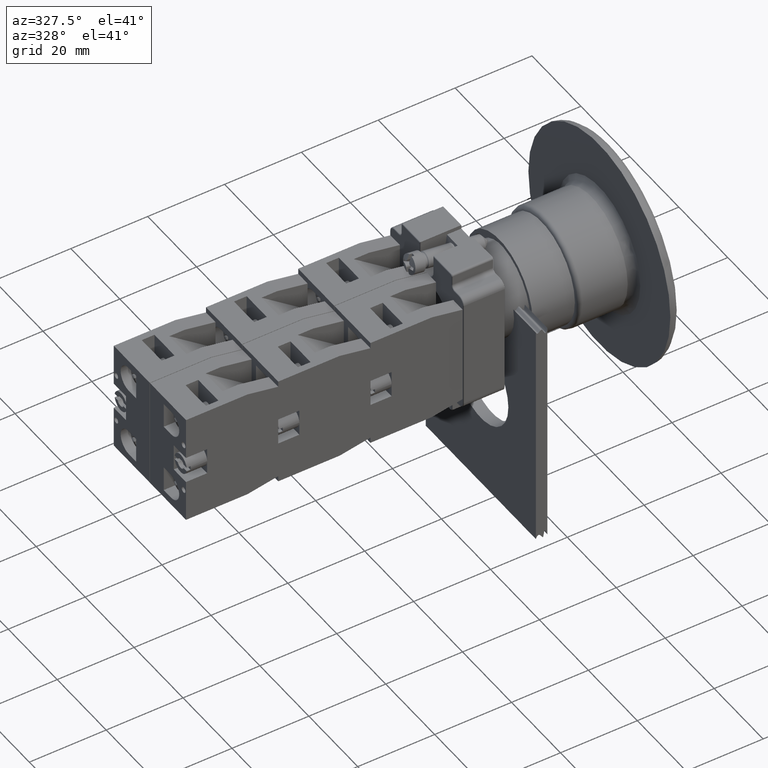
[diagram: clean part render]
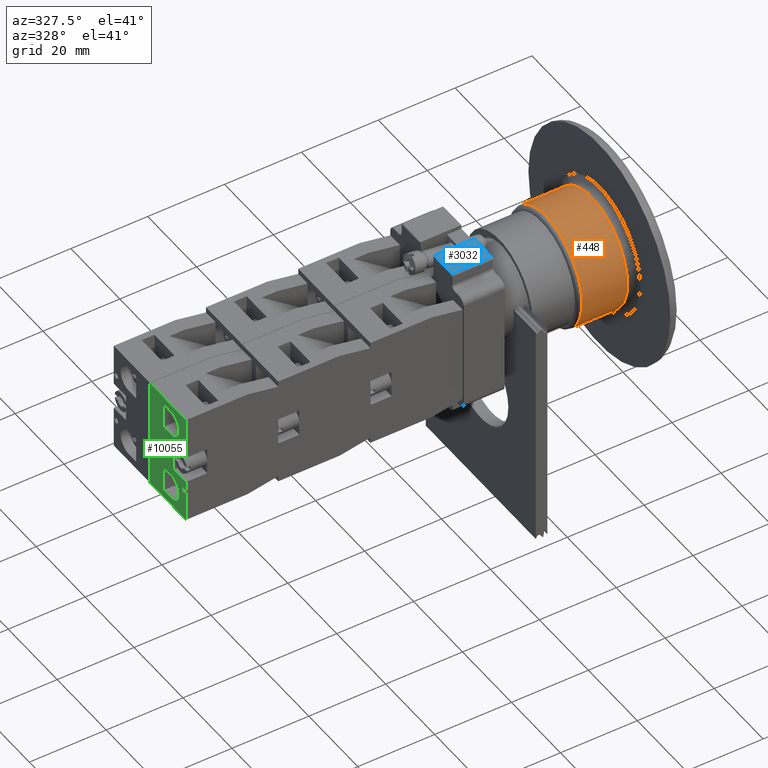
[diagram: same view with three faces highlighted in distinct colors, each labeled with its STEP entity id]
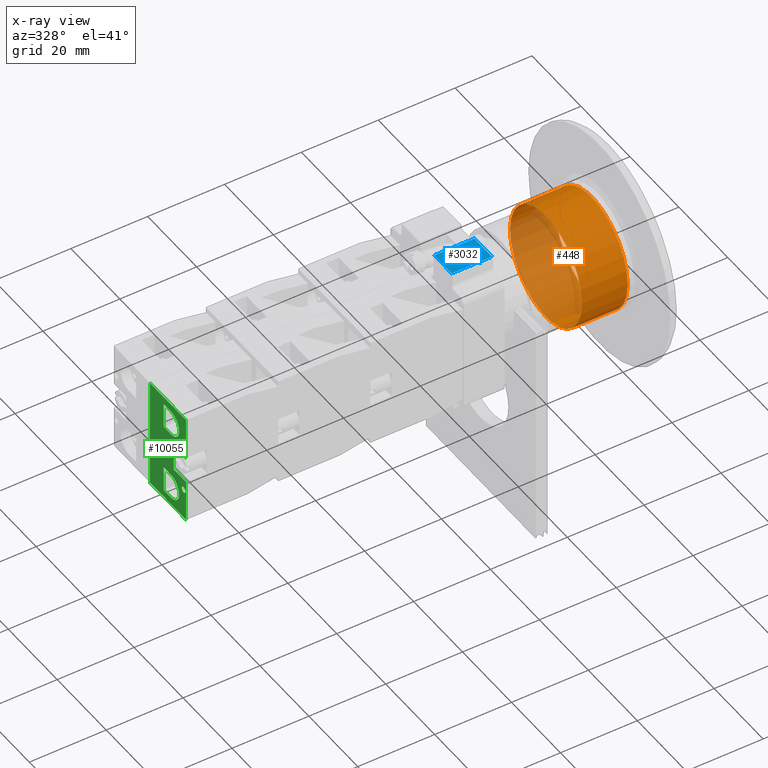
[diagram: x-ray of the same camera — body ghosted, the three highlighted faces saturated]
A machine part, auxiliary view with three faces highlighted in distinct colors.
The next image is the same camera in x-ray (body ghosted, the three faces saturated) — at least one of them is partly hidden behind the body in this view.
Their STEP definitions:

[orange] entity #448 — the highlighted cylindrical surface (bore or boss wall) has radius 14.6996 mm, axis along (1, 0, 0).
#406=CARTESIAN_POINT('',(39.409935123205457,-4.795988251590000,0.0));
#407=VERTEX_POINT('',#406);
#408=CARTESIAN_POINT('',(39.409935123205457,-19.495611931044870,0.0));
#409=DIRECTION('',(1.0,0.0,0.0));
#410=DIRECTION('',(0.0,-1.0,0.0));
#411=AXIS2_PLACEMENT_3D('',#408,#409,#410);
#412=CIRCLE('',#411,14.699623679454872);
#413=EDGE_CURVE('',#407,#407,#412,.T.);
#429=CARTESIAN_POINT('',(34.459375176904977,-19.495611931044870,0.0));
#430=DIRECTION('',(1.0,0.0,0.0));
#431=DIRECTION('',(0.0,1.0,0.0));
#432=AXIS2_PLACEMENT_3D('',#429,#430,#431);
#433=CYLINDRICAL_SURFACE('',#432,14.699623679454872);
#434=CARTESIAN_POINT('',(27.508815230604505,-4.795988251590002,0.0));
#435=VERTEX_POINT('',#434);
#436=CARTESIAN_POINT('',(27.508815230604505,-19.495611931044870,0.0));
#437=DIRECTION('',(1.0,0.0,0.0));
#438=DIRECTION('',(0.0,1.0,0.0));
#439=AXIS2_PLACEMENT_3D('',#436,#437,#438);
#440=CIRCLE('',#439,14.699623679454870);
#441=EDGE_CURVE('',#435,#435,#440,.T.);
#442=ORIENTED_EDGE('',*,*,#441,.T.);
#443=EDGE_LOOP('',(#442));
#444=FACE_OUTER_BOUND('',#443,.T.);
#445=ORIENTED_EDGE('',*,*,#413,.F.);
#446=EDGE_LOOP('',(#445));
#447=FACE_BOUND('',#446,.T.);
#448=ADVANCED_FACE('',(#444,#447),#433,.T.);

[blue] entity #3032 — the highlighted planar face has unit normal (0, -0, 1).
#1551=CARTESIAN_POINT('',(20.617219691723896,7.467864828157555,10.500000000000000));
#1552=VERTEX_POINT('',#1551);
#1928=CARTESIAN_POINT('',(20.617219691723896,0.267864828157554,10.500000000000000));
#1929=VERTEX_POINT('',#1928);
#2051=CARTESIAN_POINT('',(20.617219691723896,0.267864828157554,10.500000000000000));
#2052=DIRECTION('',(0.0,1.0,0.0));
#2053=VECTOR('',#2052,7.200000000000001);
#2054=LINE('',#2051,#2053);
#2055=EDGE_CURVE('',#1929,#1552,#2054,.T.);
#2975=CARTESIAN_POINT('',(20.617219691723896,7.467864828157555,0.0));
#2976=VERTEX_POINT('',#2975);
#2977=CARTESIAN_POINT('',(20.617219691723896,7.467864828157555,0.0));
#2978=DIRECTION('',(0.0,0.0,1.0));
#2979=VECTOR('',#2978,10.500000000000000);
#2980=LINE('',#2977,#2979);
#2981=EDGE_CURVE('',#2976,#1552,#2980,.T.);
#3009=CARTESIAN_POINT('',(20.617219691723896,7.467864828157555,0.0));
#3010=DIRECTION('',(1.0,0.0,0.0));
#3011=DIRECTION('',(0.0,0.0,-1.0));
#3012=AXIS2_PLACEMENT_3D('',#3009,#3010,#3011);
#3013=PLANE('',#3012);
#3014=ORIENTED_EDGE('',*,*,#2055,.F.);
#3015=CARTESIAN_POINT('',(20.617219691723896,0.267864828157554,0.0));
#3016=VERTEX_POINT('',#3015);
#3017=CARTESIAN_POINT('',(20.617219691723896,0.267864828157554,0.0));
#3018=DIRECTION('',(0.0,0.0,1.0));
#3019=VECTOR('',#3018,10.500000000000000);
#3020=LINE('',#3017,#3019);
#3021=EDGE_CURVE('',#3016,#1929,#3020,.T.);
#3022=ORIENTED_EDGE('',*,*,#3021,.F.);
#3023=CARTESIAN_POINT('',(20.617219691723896,0.267864828157554,0.0));
#3024=DIRECTION('',(0.0,1.0,0.0));
#3025=VECTOR('',#3024,7.200000000000001);
#3026=LINE('',#3023,#3025);
#3027=EDGE_CURVE('',#3016,#2976,#3026,.T.);
#3028=ORIENTED_EDGE('',*,*,#3027,.T.);
#3029=ORIENTED_EDGE('',*,*,#2981,.T.);
#3030=EDGE_LOOP('',(#3014,#3022,#3028,#3029));
#3031=FACE_OUTER_BOUND('',#3030,.T.);
#3032=ADVANCED_FACE('',(#3031),#3013,.T.);

[green] entity #10055 — the highlighted planar face has unit normal (-1, 0, 0).
#8457=CARTESIAN_POINT('',(-44.936741828918471,23.797073323279623,14.699999999999999));
#8458=VERTEX_POINT('',#8457);
#8465=CARTESIAN_POINT('',(-44.936741828918471,23.797073323279623,0.0));
#8466=VERTEX_POINT('',#8465);
#8467=CARTESIAN_POINT('',(-44.936741828918471,23.797073323279623,0.0));
#8468=DIRECTION('',(0.0,0.0,1.0));
#8469=VECTOR('',#8468,14.699999999999999);
#8470=LINE('',#8467,#8469);
#8471=EDGE_CURVE('',#8466,#8458,#8470,.T.);
#9440=CARTESIAN_POINT('',(-36.186741828918457,23.797073323279623,13.700000000000001));
#9441=VERTEX_POINT('',#9440);
#9442=CARTESIAN_POINT('',(-36.936741828918457,23.797073323279623,13.700000000000001));
#9443=DIRECTION('',(0.0,-1.0,0.0));
#9444=DIRECTION('',(-1.0,0.0,0.0));
#9445=AXIS2_PLACEMENT_3D('',#9442,#9443,#9444);
#9446=CIRCLE('',#9445,0.750000000000000);
#9447=EDGE_CURVE('',#9441,#9441,#9446,.T.);
#9477=CARTESIAN_POINT('',(-23.186741828918453,23.797073323279626,13.700000000000001));
#9478=VERTEX_POINT('',#9477);
#9479=CARTESIAN_POINT('',(-23.936741828918457,23.797073323279623,13.700000000000001));
#9480=DIRECTION('',(0.0,-1.0,0.0));
#9481=DIRECTION('',(-1.0,0.0,0.0));
#9482=AXIS2_PLACEMENT_3D('',#9479,#9480,#9481);
#9483=CIRCLE('',#9482,0.750000000000000);
#9484=EDGE_CURVE('',#9478,#9478,#9483,.T.);
#9552=CARTESIAN_POINT('',(-24.536741828918480,23.797073323279633,5.600000000000000));
#9553=VERTEX_POINT('',#9552);
#9560=CARTESIAN_POINT('',(-24.536741828918473,23.797073323279633,8.600000000000000));
#9561=VERTEX_POINT('',#9560);
#9562=CARTESIAN_POINT('',(-24.536741828918473,23.797073323279633,8.600000000000000));
#9563=DIRECTION('',(0.0,0.0,-1.0));
#9564=VECTOR('',#9563,3.0);
#9565=LINE('',#9562,#9564);
#9566=EDGE_CURVE('',#9561,#9553,#9565,.T.);
#9583=CARTESIAN_POINT('',(-17.936741828918478,23.797073323279641,5.600000000000000));
#9584=VERTEX_POINT('',#9583);
#9591=CARTESIAN_POINT('',(-24.536741828918480,23.797073323279633,5.600000000000000));
#9592=DIRECTION('',(1.0,0.0,0.0));
#9593=VECTOR('',#9592,6.600000000000001);
#9594=LINE('',#9591,#9593);
#9595=EDGE_CURVE('',#9553,#9584,#9594,.T.);
#9648=CARTESIAN_POINT('',(-36.336741828918470,23.797073323279623,8.600000000000000));
#9649=VERTEX_POINT('',#9648);
#9656=CARTESIAN_POINT('',(-36.336741828918463,23.797073323279623,5.600000000000000));
#9657=VERTEX_POINT('',#9656);
#9658=CARTESIAN_POINT('',(-36.336741828918463,23.797073323279623,5.600000000000000));
#9659=DIRECTION('',(0.0,0.0,1.0));
#9660=VECTOR('',#9659,3.0);
#9661=LINE('',#9658,#9660);
#9662=EDGE_CURVE('',#9657,#9649,#9661,.T.);
#9679=CARTESIAN_POINT('',(-42.936741828918471,23.797073323279623,8.600000000000000));
#9680=VERTEX_POINT('',#9679);
#9687=CARTESIAN_POINT('',(-39.636741828918467,23.797073323279623,8.600000000000000));
#9688=DIRECTION('',(0.0,-1.0,0.0));
#9689=DIRECTION('',(1.0,0.0,0.0));
#9690=AXIS2_PLACEMENT_3D('',#9687,#9688,#9689);
#9691=CIRCLE('',#9690,3.300000000000001);
#9692=EDGE_CURVE('',#9649,#9680,#9691,.T.);
#9704=CARTESIAN_POINT('',(-17.936741828918478,23.797073323279641,8.600000000000000));
#9705=VERTEX_POINT('',#9704);
#9712=CARTESIAN_POINT('',(-17.936741828918478,23.797073323279641,5.600000000000000));
#9713=DIRECTION('',(0.0,0.0,1.0));
#9714=VECTOR('',#9713,3.0);
#9715=LINE('',#9712,#9714);
#9716=EDGE_CURVE('',#9584,#9705,#9715,.T.);
#9750=CARTESIAN_POINT('',(-21.236741828918476,23.797073323279648,8.600000000000000));
#9751=DIRECTION('',(0.0,-1.0,0.0));
#9752=DIRECTION('',(-1.0,0.0,0.0));
#9753=AXIS2_PLACEMENT_3D('',#9750,#9751,#9752);
#9754=CIRCLE('',#9753,3.300000000000001);
#9755=EDGE_CURVE('',#9705,#9561,#9754,.T.);
#9786=CARTESIAN_POINT('',(-42.936741828918471,23.797073323279623,5.600000000000000));
#9787=VERTEX_POINT('',#9786);
#9794=CARTESIAN_POINT('',(-42.936741828918471,23.797073323279623,8.600000000000000));
#9795=DIRECTION('',(0.0,0.0,-1.0));
#9796=VECTOR('',#9795,3.0);
#9797=LINE('',#9794,#9796);
#9798=EDGE_CURVE('',#9680,#9787,#9797,.T.);
#9811=CARTESIAN_POINT('',(-42.936741828918471,23.797073323279623,5.600000000000000));
#9812=DIRECTION('',(1.0,0.0,0.0));
#9813=VECTOR('',#9812,6.600000000000009);
#9814=LINE('',#9811,#9813);
#9815=EDGE_CURVE('',#9787,#9657,#9814,.T.);
#9891=CARTESIAN_POINT('',(-26.936741828918468,23.797073323279626,14.699999999999999));
#9892=VERTEX_POINT('',#9891);
#9899=CARTESIAN_POINT('',(-26.936741828918464,23.797073323279626,9.700000000000001));
#9900=VERTEX_POINT('',#9899);
#9901=CARTESIAN_POINT('',(-26.936741828918464,23.797073323279626,9.700000000000001));
#9902=DIRECTION('',(0.0,0.0,1.0));
#9903=VECTOR('',#9902,4.999999999999998);
#9904=LINE('',#9901,#9903);
#9905=EDGE_CURVE('',#9900,#9892,#9904,.T.);
#9930=CARTESIAN_POINT('',(-33.936741828918464,23.797073323279623,9.700000000000001));
#9931=VERTEX_POINT('',#9930);
#9932=CARTESIAN_POINT('',(-33.936741828918464,23.797073323279623,9.700000000000001));
#9933=DIRECTION('',(1.0,0.0,0.0));
#9934=VECTOR('',#9933,7.0);
#9935=LINE('',#9932,#9934);
#9936=EDGE_CURVE('',#9931,#9900,#9935,.T.);
#9961=CARTESIAN_POINT('',(-33.936741828918464,23.797073323279623,14.699999999999999));
#9962=VERTEX_POINT('',#9961);
#9963=CARTESIAN_POINT('',(-33.936741828918464,23.797073323279623,14.699999999999999));
#9964=DIRECTION('',(0.0,0.0,-1.0));
#9965=VECTOR('',#9964,4.999999999999998);
#9966=LINE('',#9963,#9965);
#9967=EDGE_CURVE('',#9962,#9931,#9966,.T.);
#9998=CARTESIAN_POINT('',(-44.936741828918471,23.797073323279623,0.0));
#9999=DIRECTION('',(0.0,1.0,0.0));
#10000=DIRECTION('',(0.0,0.0,1.0));
#10001=AXIS2_PLACEMENT_3D('',#9998,#9999,#10000);
#10002=PLANE('',#10001);
#10003=ORIENTED_EDGE('',*,*,#9967,.T.);
#10004=ORIENTED_EDGE('',*,*,#9936,.T.);
#10005=ORIENTED_EDGE('',*,*,#9905,.T.);
#10006=CARTESIAN_POINT('',(-15.936741828918466,23.797073323279626,14.699999999999999));
#10007=VERTEX_POINT('',#10006);
#10008=CARTESIAN_POINT('',(-26.936741828918468,23.797073323279626,14.699999999999999));
#10009=DIRECTION('',(1.0,0.0,0.0));
#10010=VECTOR('',#10009,11.000000000000002);
#10011=LINE('',#10008,#10010);
#10012=EDGE_CURVE('',#9892,#10007,#10011,.T.);
#10013=ORIENTED_EDGE('',*,*,#10012,.T.);
#10014=CARTESIAN_POINT('',(-15.936741828918466,23.797073323279626,0.0));
#10015=VERTEX_POINT('',#10014);
#10016=CARTESIAN_POINT('',(-15.936741828918466,23.797073323279626,0.0));
#10017=DIRECTION('',(0.0,0.0,1.0));
#10018=VECTOR('',#10017,14.699999999999999);
#10019=LINE('',#10016,#10018);
#10020=EDGE_CURVE('',#10015,#10007,#10019,.T.);
#10021=ORIENTED_EDGE('',*,*,#10020,.F.);
#10022=CARTESIAN_POINT('',(-44.936741828918471,23.797073323279623,0.0));
#10023=DIRECTION('',(1.0,0.0,0.0));
#10024=VECTOR('',#10023,29.000000000000007);
#10025=LINE('',#10022,#10024);
#10026=EDGE_CURVE('',#8466,#10015,#10025,.T.);
#10027=ORIENTED_EDGE('',*,*,#10026,.F.);
#10028=ORIENTED_EDGE('',*,*,#8471,.T.);
#10029=CARTESIAN_POINT('',(-44.936741828918471,23.797073323279623,14.699999999999999));
#10030=DIRECTION('',(1.0,0.0,0.0));
#10031=VECTOR('',#10030,11.000000000000007);
#10032=LINE('',#10029,#10031);
#10033=EDGE_CURVE('',#8458,#9962,#10032,.T.);
#10034=ORIENTED_EDGE('',*,*,#10033,.T.);
#10035=EDGE_LOOP('',(#10003,#10004,#10005,#10013,#10021,#10027,#10028,#10034));
#10036=FACE_OUTER_BOUND('',#10035,.T.);
#10037=ORIENTED_EDGE('',*,*,#9447,.T.);
#10038=EDGE_LOOP('',(#10037));
#10039=FACE_BOUND('',#10038,.T.);
#10040=ORIENTED_EDGE('',*,*,#9484,.T.);
#10041=EDGE_LOOP('',(#10040));
#10042=FACE_BOUND('',#10041,.T.);
#10043=ORIENTED_EDGE('',*,*,#9716,.T.);
#10044=ORIENTED_EDGE('',*,*,#9755,.T.);
#10045=ORIENTED_EDGE('',*,*,#9566,.T.);
#10046=ORIENTED_EDGE('',*,*,#9595,.T.);
#10047=EDGE_LOOP('',(#10043,#10044,#10045,#10046));
#10048=FACE_BOUND('',#10047,.T.);
#10049=ORIENTED_EDGE('',*,*,#9798,.T.);
#10050=ORIENTED_EDGE('',*,*,#9815,.T.);
#10051=ORIENTED_EDGE('',*,*,#9662,.T.);
#10052=ORIENTED_EDGE('',*,*,#9692,.T.);
#10053=EDGE_LOOP('',(#10049,#10050,#10051,#10052));
#10054=FACE_BOUND('',#10053,.T.);
#10055=ADVANCED_FACE('',(#10036,#10039,#10042,#10048,#10054),#10002,.T.);